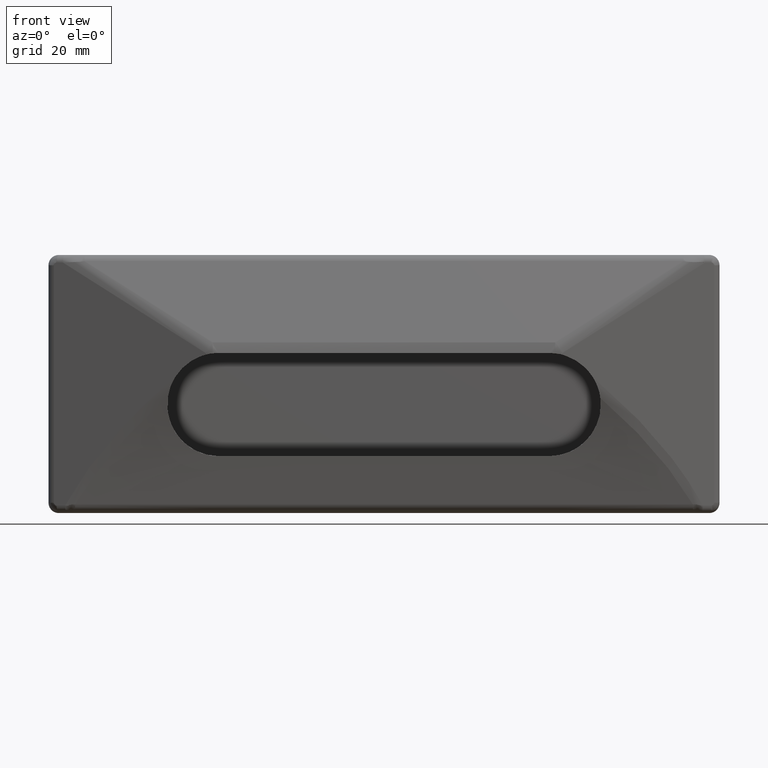
[diagram: clean part render]
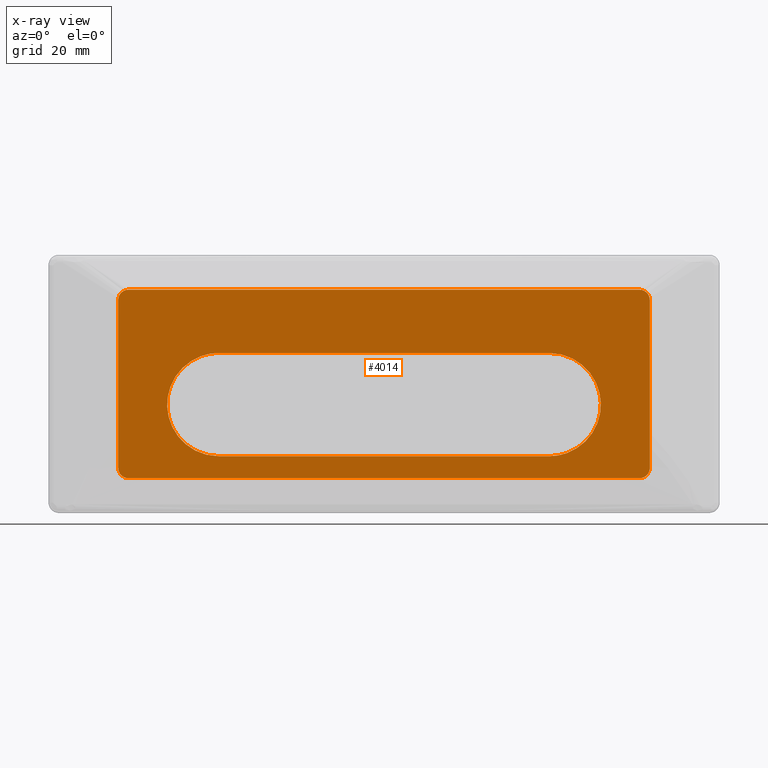
[diagram: x-ray — body ghosted, one internal face saturated and labeled with its STEP entity id]
A machine part, front view, then the same camera in x-ray: the body is ghosted and one INTERNAL B-rep face — a face not visible from any outside direction — is saturated and labeled: STEP entity #4014.
In plain terms, the highlighted face is a freeform B-spline surface patch.
Its self-contained STEP definition (entity closure, byte-faithful):
#3720=CARTESIAN_POINT('',(51.500000000000000,-1.0,16.250000000000000));
#3721=VERTEX_POINT('',#3720);
#3727=CARTESIAN_POINT('',(49.500000000000000,-1.0,18.250000000000000));
#3728=VERTEX_POINT('',#3727);
#3729=CARTESIAN_POINT('',(51.500000000000007,-1.0,16.250000000000000));
#3730=CARTESIAN_POINT('',(51.500000000000000,-1.0,18.250000000000011));
#3731=CARTESIAN_POINT('',(49.500000000000000,-1.0,18.250000000000000));
#3739=(BOUNDED_CURVE()B_SPLINE_CURVE(2,(#3729,#3730,#3731),.UNSPECIFIED.,.F.,.U.)CURVE()GEOMETRIC_REPRESENTATION_ITEM()QUASI_UNIFORM_CURVE()RATIONAL_B_SPLINE_CURVE((1.0,0.707106781186548,1.0))REPRESENTATION_ITEM(''));
#3740=EDGE_CURVE('',#3721,#3728,#3739,.T.);
#3756=CARTESIAN_POINT('',(51.500000000000000,-1.0,-16.250000000000000));
#3757=VERTEX_POINT('',#3756);
#3763=CARTESIAN_POINT('',(51.500000000000000,-1.0,-16.250000000000000));
#3764=CARTESIAN_POINT('',(51.500000000000000,-1.0,16.250000000000000));
#3765=QUASI_UNIFORM_CURVE('',1,(#3763,#3764),.UNSPECIFIED.,.F.,.U.);
#3766=EDGE_CURVE('',#3757,#3721,#3765,.T.);
#3787=CARTESIAN_POINT('',(49.500000000000000,-1.0,-18.250000000000000));
#3788=VERTEX_POINT('',#3787);
#3794=CARTESIAN_POINT('',(49.500000000000000,-1.0,-18.250000000000000));
#3795=CARTESIAN_POINT('',(51.500000000000000,-1.0,-18.250000000000011));
#3796=CARTESIAN_POINT('',(51.500000000000007,-1.0,-16.250000000000000));
#3804=(BOUNDED_CURVE()B_SPLINE_CURVE(2,(#3794,#3795,#3796),.UNSPECIFIED.,.F.,.U.)CURVE()GEOMETRIC_REPRESENTATION_ITEM()QUASI_UNIFORM_CURVE()RATIONAL_B_SPLINE_CURVE((1.0,0.707106781186548,1.0))REPRESENTATION_ITEM(''));
#3805=EDGE_CURVE('',#3788,#3757,#3804,.T.);
#3817=CARTESIAN_POINT('',(-49.500000000000000,-1.0,-18.250000000000000));
#3818=VERTEX_POINT('',#3817);
#3824=CARTESIAN_POINT('',(-49.500000000000000,-1.0,-18.250000000000000));
#3825=CARTESIAN_POINT('',(49.500000000000000,-1.0,-18.250000000000000));
#3826=QUASI_UNIFORM_CURVE('',1,(#3824,#3825),.UNSPECIFIED.,.F.,.U.);
#3827=EDGE_CURVE('',#3818,#3788,#3826,.T.);
#3848=CARTESIAN_POINT('',(-51.500000000000000,-1.0,-16.250000000000000));
#3849=VERTEX_POINT('',#3848);
#3855=CARTESIAN_POINT('',(-51.500000000000007,-1.0,-16.250000000000000));
#3856=CARTESIAN_POINT('',(-51.500000000000000,-1.0,-18.250000000000011));
#3857=CARTESIAN_POINT('',(-49.500000000000000,-1.0,-18.250000000000000));
#3865=(BOUNDED_CURVE()B_SPLINE_CURVE(2,(#3855,#3856,#3857),.UNSPECIFIED.,.F.,.U.)CURVE()GEOMETRIC_REPRESENTATION_ITEM()QUASI_UNIFORM_CURVE()RATIONAL_B_SPLINE_CURVE((1.0,0.707106781186548,1.0))REPRESENTATION_ITEM(''));
#3866=EDGE_CURVE('',#3849,#3818,#3865,.T.);
#3878=CARTESIAN_POINT('',(-51.500000000000000,-1.0,16.250000000000000));
#3879=VERTEX_POINT('',#3878);
#3885=CARTESIAN_POINT('',(-51.500000000000000,-1.0,16.250000000000000));
#3886=CARTESIAN_POINT('',(-51.500000000000000,-1.0,-16.250000000000000));
#3887=QUASI_UNIFORM_CURVE('',1,(#3885,#3886),.UNSPECIFIED.,.F.,.U.);
#3888=EDGE_CURVE('',#3879,#3849,#3887,.T.);
#3909=CARTESIAN_POINT('',(-49.500000000000000,-1.0,18.250000000000000));
#3910=VERTEX_POINT('',#3909);
#3916=CARTESIAN_POINT('',(-49.500000000000000,-1.0,18.250000000000000));
#3917=CARTESIAN_POINT('',(-51.500000000000000,-1.0,18.250000000000011));
#3918=CARTESIAN_POINT('',(-51.500000000000007,-1.0,16.250000000000000));
#3926=(BOUNDED_CURVE()B_SPLINE_CURVE(2,(#3916,#3917,#3918),.UNSPECIFIED.,.F.,.U.)CURVE()GEOMETRIC_REPRESENTATION_ITEM()QUASI_UNIFORM_CURVE()RATIONAL_B_SPLINE_CURVE((1.0,0.707106781186548,1.0))REPRESENTATION_ITEM(''));
#3927=EDGE_CURVE('',#3910,#3879,#3926,.T.);
#3940=CARTESIAN_POINT('',(49.500000000000000,-1.0,18.250000000000000));
#3941=CARTESIAN_POINT('',(-49.500000000000000,-1.0,18.250000000000000));
#3942=QUASI_UNIFORM_CURVE('',1,(#3940,#3941),.UNSPECIFIED.,.F.,.U.);
#3943=EDGE_CURVE('',#3728,#3910,#3942,.T.);
#3949=CARTESIAN_POINT('',(-56.644849800366018,-1.0,20.073174929255920));
#3950=CARTESIAN_POINT('',(56.644852563041297,-1.0,20.073174929255920));
#3951=CARTESIAN_POINT('',(-56.644849800366018,-1.0,-20.073175908262218));
#3952=CARTESIAN_POINT('',(56.644852563041297,-1.0,-20.073175908262211));
#3953=B_SPLINE_SURFACE_WITH_KNOTS('',1,1,((#3949,#3951),(#3950,#3952)),.UNSPECIFIED.,.F.,.F.,.U.,(2,2),(2,2),(0.0,113.289702363407300),(0.0,40.146350837518142),.UNSPECIFIED.);
#3954=ORIENTED_EDGE('',*,*,#3943,.F.);
#3955=ORIENTED_EDGE('',*,*,#3740,.F.);
#3956=ORIENTED_EDGE('',*,*,#3766,.F.);
#3957=ORIENTED_EDGE('',*,*,#3805,.F.);
#3958=ORIENTED_EDGE('',*,*,#3827,.F.);
#3959=ORIENTED_EDGE('',*,*,#3866,.F.);
#3960=ORIENTED_EDGE('',*,*,#3888,.F.);
#3961=ORIENTED_EDGE('',*,*,#3927,.F.);
#3962=EDGE_LOOP('',(#3954,#3955,#3956,#3957,#3958,#3959,#3960,#3961));
#3963=FACE_OUTER_BOUND('',#3962,.T.);
#3964=CARTESIAN_POINT('',(-32.0,-1.0,6.0));
#3965=VERTEX_POINT('',#3964);
#3966=CARTESIAN_POINT('',(32.0,-1.0,6.0));
#3967=VERTEX_POINT('',#3966);
#3968=CARTESIAN_POINT('',(-32.0,-1.0,6.0));
#3969=CARTESIAN_POINT('',(32.0,-1.0,6.0));
#3970=QUASI_UNIFORM_CURVE('',1,(#3968,#3969),.UNSPECIFIED.,.F.,.U.);
#3971=EDGE_CURVE('',#3965,#3967,#3970,.T.);
#3972=ORIENTED_EDGE('',*,*,#3971,.F.);
#3973=CARTESIAN_POINT('',(-32.0,-1.0,-14.0));
#3974=VERTEX_POINT('',#3973);
#3975=CARTESIAN_POINT('',(-32.0,-1.0,-14.0));
#3976=CARTESIAN_POINT('',(-42.000000000000007,-1.0,-13.999999999999998));
#3977=CARTESIAN_POINT('',(-42.0,-1.0,-4.0));
#3978=CARTESIAN_POINT('',(-42.000000000000007,-1.0,6.0));
#3979=CARTESIAN_POINT('',(-32.0,-1.0,6.0));
#3987=(BOUNDED_CURVE()B_SPLINE_CURVE(2,(#3975,#3976,#3977,#3978,#3979),.UNSPECIFIED.,.F.,.U.)B_SPLINE_CURVE_WITH_KNOTS((3,2,3),(0.0,0.500000000000000,1.0),.UNSPECIFIED.)CURVE()GEOMETRIC_REPRESENTATION_ITEM()RATIONAL_B_SPLINE_CURVE((1.0,0.707106781186548,1.0,0.707106781186548,1.0))REPRESENTATION_ITEM(''));
#3988=EDGE_CURVE('',#3974,#3965,#3987,.T.);
#3989=ORIENTED_EDGE('',*,*,#3988,.F.);
#3990=CARTESIAN_POINT('',(32.0,-1.0,-14.0));
#3991=VERTEX_POINT('',#3990);
#3992=CARTESIAN_POINT('',(32.0,-1.0,-14.0));
#3993=CARTESIAN_POINT('',(-32.0,-1.0,-14.0));
#3994=QUASI_UNIFORM_CURVE('',1,(#3992,#3993),.UNSPECIFIED.,.F.,.U.);
#3995=EDGE_CURVE('',#3991,#3974,#3994,.T.);
#3996=ORIENTED_EDGE('',*,*,#3995,.F.);
#3997=CARTESIAN_POINT('',(32.0,-1.0,6.0));
#3998=CARTESIAN_POINT('',(42.000000000000007,-1.0,6.0));
#3999=CARTESIAN_POINT('',(42.0,-1.0,-4.0));
#4000=CARTESIAN_POINT('',(42.000000000000007,-1.0,-13.999999999999998));
#4001=CARTESIAN_POINT('',(32.0,-1.0,-14.0));
#4009=(BOUNDED_CURVE()B_SPLINE_CURVE(2,(#3997,#3998,#3999,#4000,#4001),.UNSPECIFIED.,.F.,.U.)B_SPLINE_CURVE_WITH_KNOTS((3,2,3),(0.0,0.500000000000000,1.0),.UNSPECIFIED.)CURVE()GEOMETRIC_REPRESENTATION_ITEM()RATIONAL_B_SPLINE_CURVE((1.0,0.707106781186548,1.0,0.707106781186548,1.0))REPRESENTATION_ITEM(''));
#4010=EDGE_CURVE('',#3967,#3991,#4009,.T.);
#4011=ORIENTED_EDGE('',*,*,#4010,.F.);
#4012=EDGE_LOOP('',(#3972,#3989,#3996,#4011));
#4013=FACE_BOUND('',#4012,.T.);
#4014=ADVANCED_FACE('',(#3963,#4013),#3953,.T.);